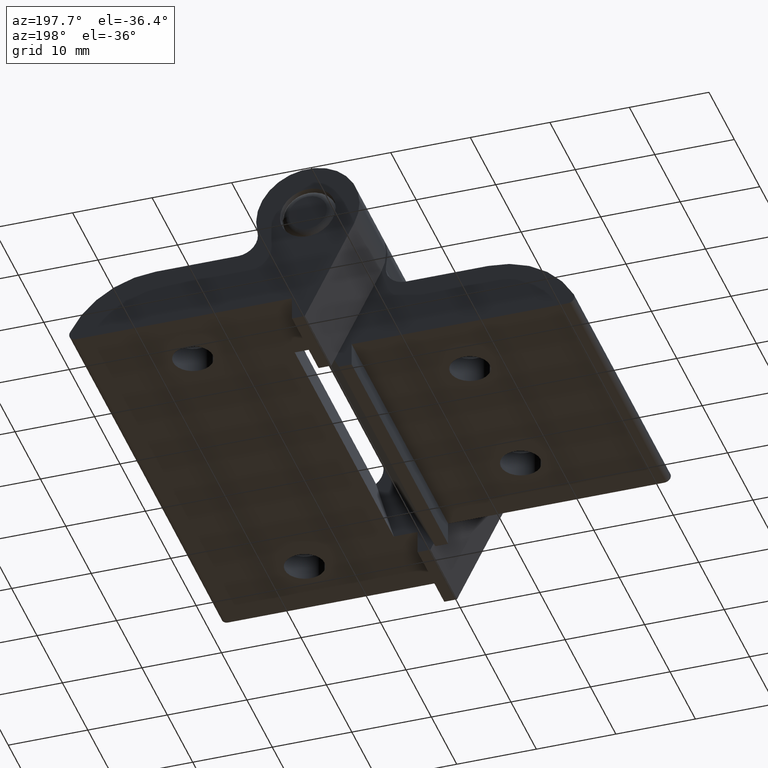
[diagram: clean part render]
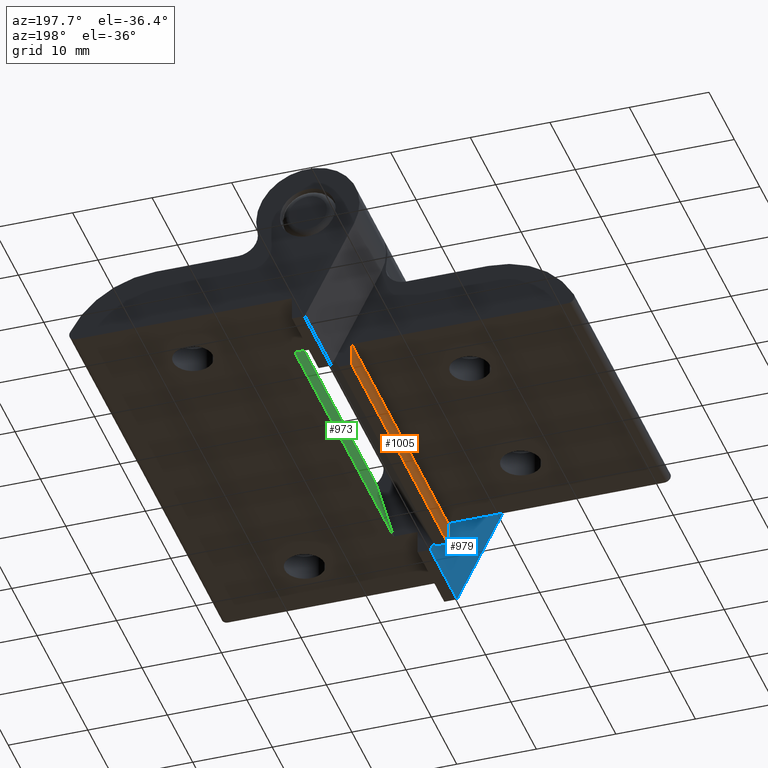
[diagram: same view with three faces highlighted in distinct colors, each labeled with its STEP entity id]
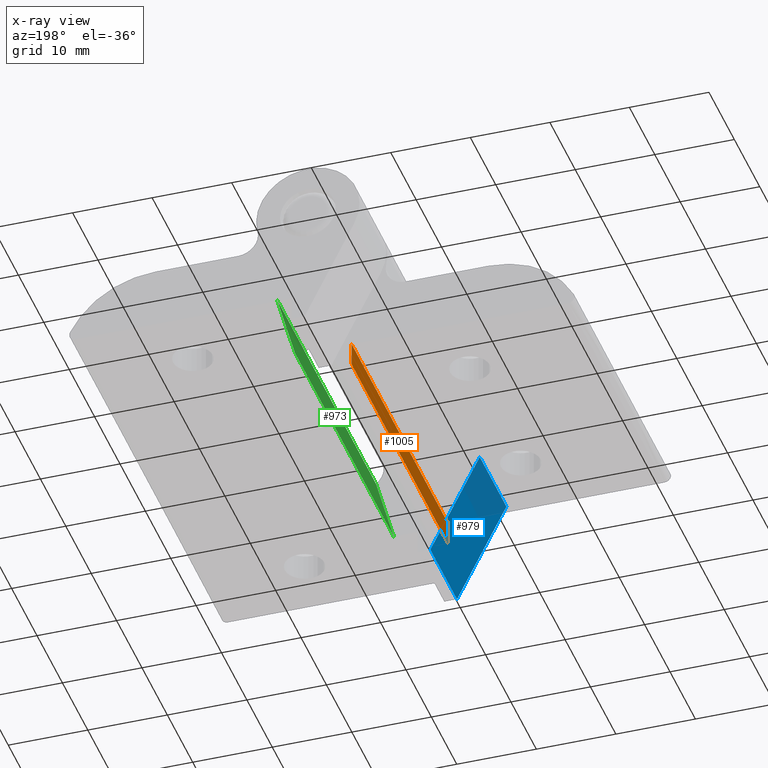
[diagram: x-ray of the same camera — body ghosted, the three highlighted faces saturated]
A machine part, auxiliary view with three faces highlighted in distinct colors.
The next image is the same camera in x-ray (body ghosted, the three faces saturated) — at least one of them is partly hidden behind the body in this view.
Their STEP definitions:

[orange] entity #1005 — the highlighted planar face has unit normal (-1, 0, -0).
#68=PLANE('',#1196);
#146=FACE_OUTER_BOUND('',#204,.T.);
#204=EDGE_LOOP('',(#911,#912,#913,#914));
#268=LINE('',#1877,#337);
#273=LINE('',#1892,#342);
#280=LINE('',#1910,#349);
#281=LINE('',#1912,#350);
#337=VECTOR('',#1440,10.);
#342=VECTOR('',#1453,10.);
#349=VECTOR('',#1472,10.);
#350=VECTOR('',#1475,10.);
#498=VERTEX_POINT('',#1874);
#499=VERTEX_POINT('',#1876);
#505=VERTEX_POINT('',#1890);
#510=VERTEX_POINT('',#1908);
#634=EDGE_CURVE('',#498,#499,#268,.T.);
#642=EDGE_CURVE('',#505,#498,#273,.T.);
#651=EDGE_CURVE('',#505,#510,#280,.T.);
#652=EDGE_CURVE('',#499,#510,#281,.T.);
#911=ORIENTED_EDGE('',*,*,#651,.T.);
#912=ORIENTED_EDGE('',*,*,#652,.F.);
#913=ORIENTED_EDGE('',*,*,#634,.F.);
#914=ORIENTED_EDGE('',*,*,#642,.F.);
#1005=ADVANCED_FACE('',(#146),#68,.T.);
#1196=AXIS2_PLACEMENT_3D('',#1911,#1473,#1474);
#1440=DIRECTION('',(0.,1.,0.));
#1453=DIRECTION('',(1.85037170770859E-16,0.,1.));
#1472=DIRECTION('',(0.,1.,0.));
#1473=DIRECTION('center_axis',(1.,0.,-1.85037170770859E-16));
#1474=DIRECTION('ref_axis',(-1.85037170770859E-16,0.,-1.));
#1475=DIRECTION('',(-1.85037170770859E-16,0.,-1.));
#1874=CARTESIAN_POINT('',(2.,-19.,-12.3));
#1876=CARTESIAN_POINT('',(2.,19.,-12.3));
#1877=CARTESIAN_POINT('',(2.,0.,-12.3));
#1890=CARTESIAN_POINT('',(2.,-19.,-15.3));
#1892=CARTESIAN_POINT('',(2.,-19.,-12.3));
#1908=CARTESIAN_POINT('',(2.,19.,-15.3));
#1910=CARTESIAN_POINT('',(2.,0.,-15.3));
#1911=CARTESIAN_POINT('Origin',(2.,0.,-12.3));
#1912=CARTESIAN_POINT('',(2.,19.,-12.3));

[blue] entity #979 — the highlighted planar face has unit normal (-0.8939, 0, -0.4482).
#59=PLANE('',#1140);
#120=FACE_OUTER_BOUND('',#171,.T.);
#171=EDGE_LOOP('',(#751,#752,#753,#754));
#232=LINE('',#1623,#301);
#247=LINE('',#1666,#316);
#250=LINE('',#1673,#319);
#251=LINE('',#1674,#320);
#301=VECTOR('',#1286,10.);
#316=VECTOR('',#1325,10.);
#319=VECTOR('',#1332,10.);
#320=VECTOR('',#1333,10.);
#443=VERTEX_POINT('',#1620);
#444=VERTEX_POINT('',#1622);
#460=VERTEX_POINT('',#1664);
#462=VERTEX_POINT('',#1672);
#553=EDGE_CURVE('',#444,#443,#232,.T.);
#575=EDGE_CURVE('',#460,#443,#247,.T.);
#578=EDGE_CURVE('',#462,#460,#250,.T.);
#579=EDGE_CURVE('',#462,#444,#251,.T.);
#751=ORIENTED_EDGE('',*,*,#553,.T.);
#752=ORIENTED_EDGE('',*,*,#575,.F.);
#753=ORIENTED_EDGE('',*,*,#578,.F.);
#754=ORIENTED_EDGE('',*,*,#579,.T.);
#979=ADVANCED_FACE('',(#120),#59,.T.);
#1140=AXIS2_PLACEMENT_3D('',#1671,#1330,#1331);
#1286=DIRECTION('',(0.448207310925167,0.,-0.893929642887644));
#1325=DIRECTION('',(0.,1.,0.));
#1330=DIRECTION('center_axis',(-0.893929642887644,0.,-0.448207310925167));
#1331=DIRECTION('ref_axis',(-0.448207310925167,0.,0.893929642887644));
#1332=DIRECTION('',(0.448207310925167,0.,-0.893929642887644));
#1333=DIRECTION('',(0.,1.,0.));
#1620=CARTESIAN_POINT('',(0.399999999999999,-19.5,-15.3));
#1622=CARTESIAN_POINT('',(-5.81054267876969,-19.5,-2.91334752101359));
#1623=CARTESIAN_POINT('',(-1.65751512762906,-19.5,-11.1963771485993));
#1664=CARTESIAN_POINT('',(0.399999999999999,-30.,-15.3));
#1666=CARTESIAN_POINT('',(0.399999999999999,0.,-15.3));
#1671=CARTESIAN_POINT('Origin',(0.399999999999999,0.,-15.3));
#1672=CARTESIAN_POINT('',(-5.81054267876969,-30.,-2.91334752101359));
#1673=CARTESIAN_POINT('',(0.399999999999999,-30.,-15.3));
#1674=CARTESIAN_POINT('',(-5.81054267876969,0.,-2.91334752101359));

[green] entity #973 — the highlighted planar face has unit normal (0.9659, 0, -0.2588).
#53=PLANE('',#1130);
#114=FACE_OUTER_BOUND('',#164,.T.);
#164=EDGE_LOOP('',(#722,#723,#724,#725));
#228=LINE('',#1615,#297);
#233=LINE('',#1631,#302);
#234=LINE('',#1633,#303);
#235=LINE('',#1634,#304);
#297=VECTOR('',#1282,10.);
#302=VECTOR('',#1295,10.);
#303=VECTOR('',#1296,10.);
#304=VECTOR('',#1297,10.);
#438=VERTEX_POINT('',#1611);
#440=VERTEX_POINT('',#1614);
#447=VERTEX_POINT('',#1630);
#448=VERTEX_POINT('',#1632);
#549=EDGE_CURVE('',#440,#438,#228,.T.);
#557=EDGE_CURVE('',#440,#447,#233,.T.);
#558=EDGE_CURVE('',#448,#438,#234,.T.);
#559=EDGE_CURVE('',#448,#447,#235,.T.);
#722=ORIENTED_EDGE('',*,*,#557,.F.);
#723=ORIENTED_EDGE('',*,*,#549,.T.);
#724=ORIENTED_EDGE('',*,*,#558,.F.);
#725=ORIENTED_EDGE('',*,*,#559,.T.);
#973=ADVANCED_FACE('',(#114),#53,.F.);
#1130=AXIS2_PLACEMENT_3D('',#1629,#1293,#1294);
#1282=DIRECTION('',(0.258819045102521,0.,0.965925826289068));
#1293=DIRECTION('center_axis',(0.965925826289068,0.,-0.258819045102521));
#1294=DIRECTION('ref_axis',(-0.258819045102521,0.,-0.965925826289068));
#1295=DIRECTION('',(0.,1.,0.));
#1296=DIRECTION('',(0.,-1.,0.));
#1297=DIRECTION('',(-0.258819045102521,0.,-0.965925826289068));
#1611=CARTESIAN_POINT('',(7.23266846303572,-19.5,-3.96756785949396));
#1614=CARTESIAN_POINT('',(5.,-19.5,-12.3));
#1615=CARTESIAN_POINT('',(7.23266846303572,-19.5,-3.96756785949396));
#1629=CARTESIAN_POINT('Origin',(7.23266846303572,0.,-3.96756785949396));
#1630=CARTESIAN_POINT('',(5.,19.5,-12.3));
#1631=CARTESIAN_POINT('',(5.,0.,-12.3));
#1632=CARTESIAN_POINT('',(7.23266846303572,19.5,-3.96756785949396));
#1633=CARTESIAN_POINT('',(7.23266846303572,0.,-3.96756785949396));
#1634=CARTESIAN_POINT('',(7.23266846303572,19.5,-3.96756785949396));